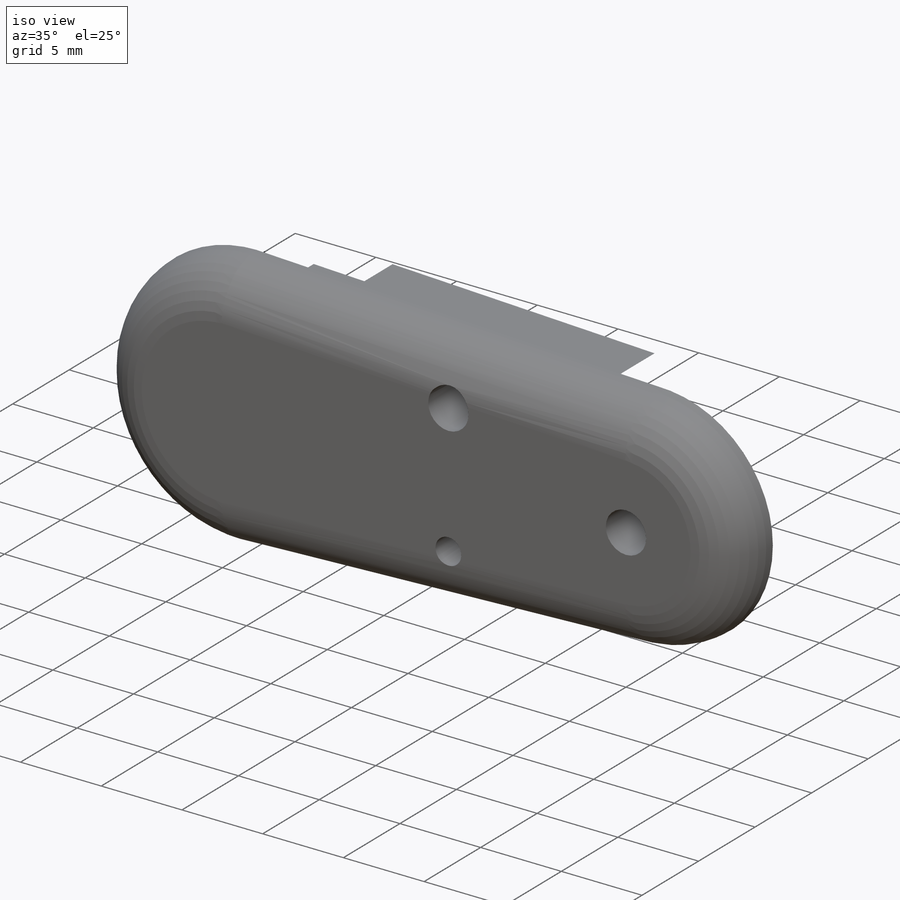
[diagram: iso view]
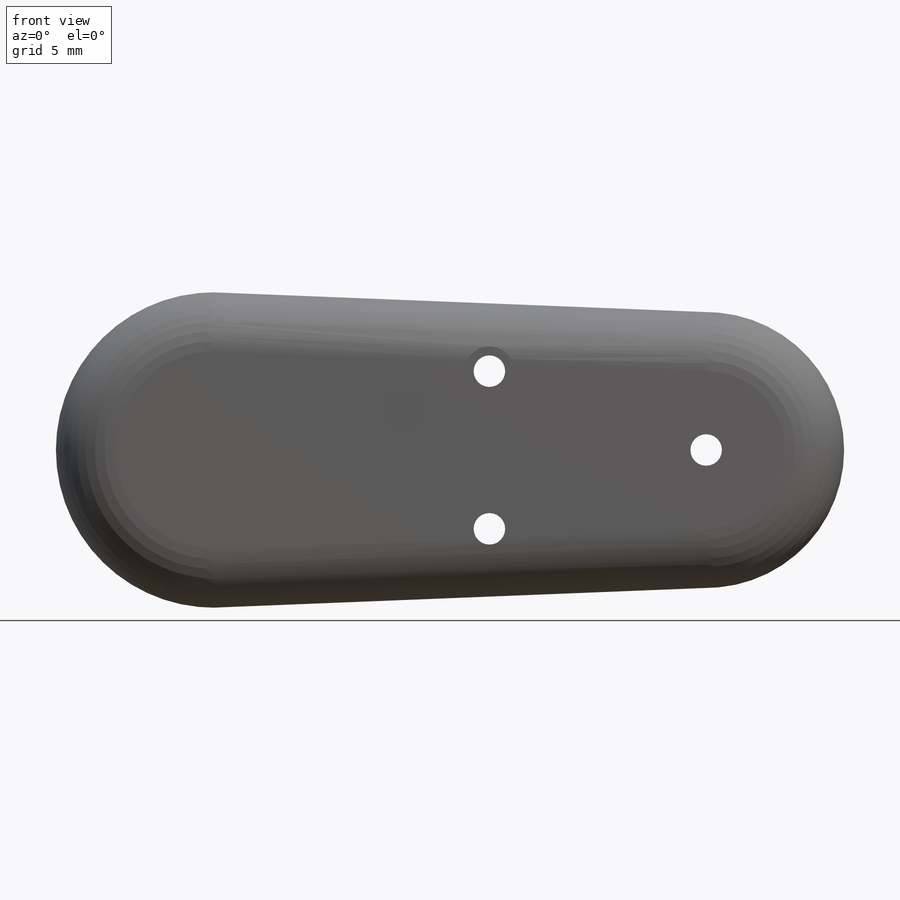
[diagram: front view]
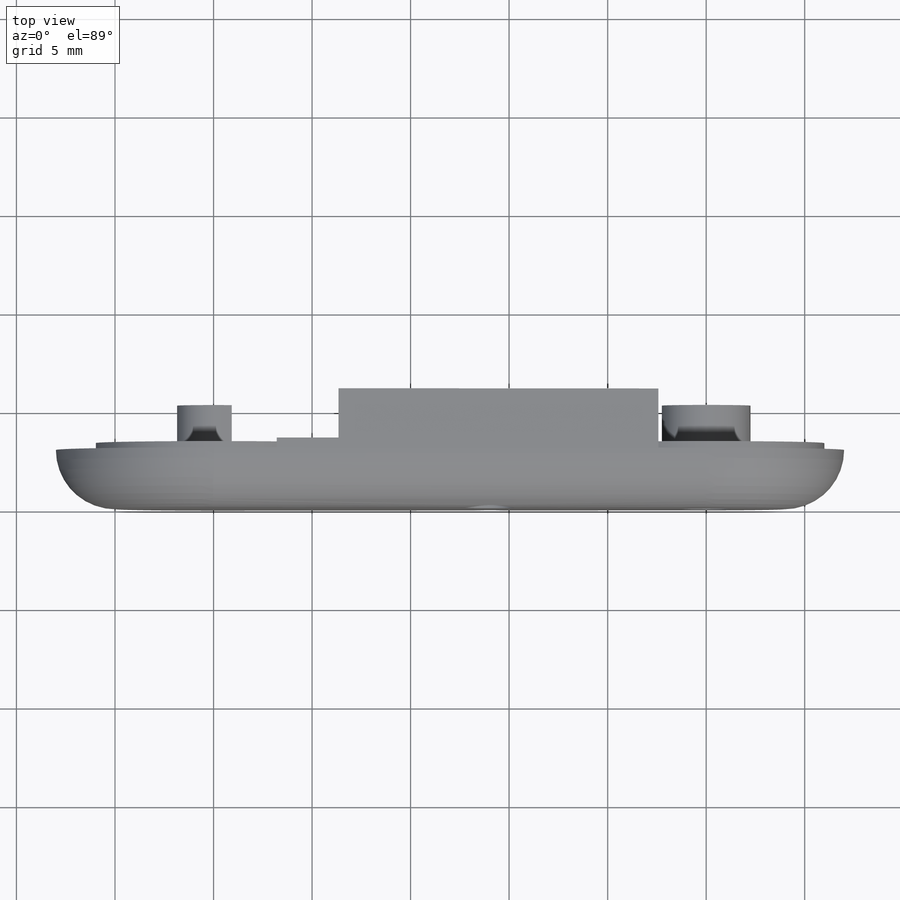
[diagram: top view]
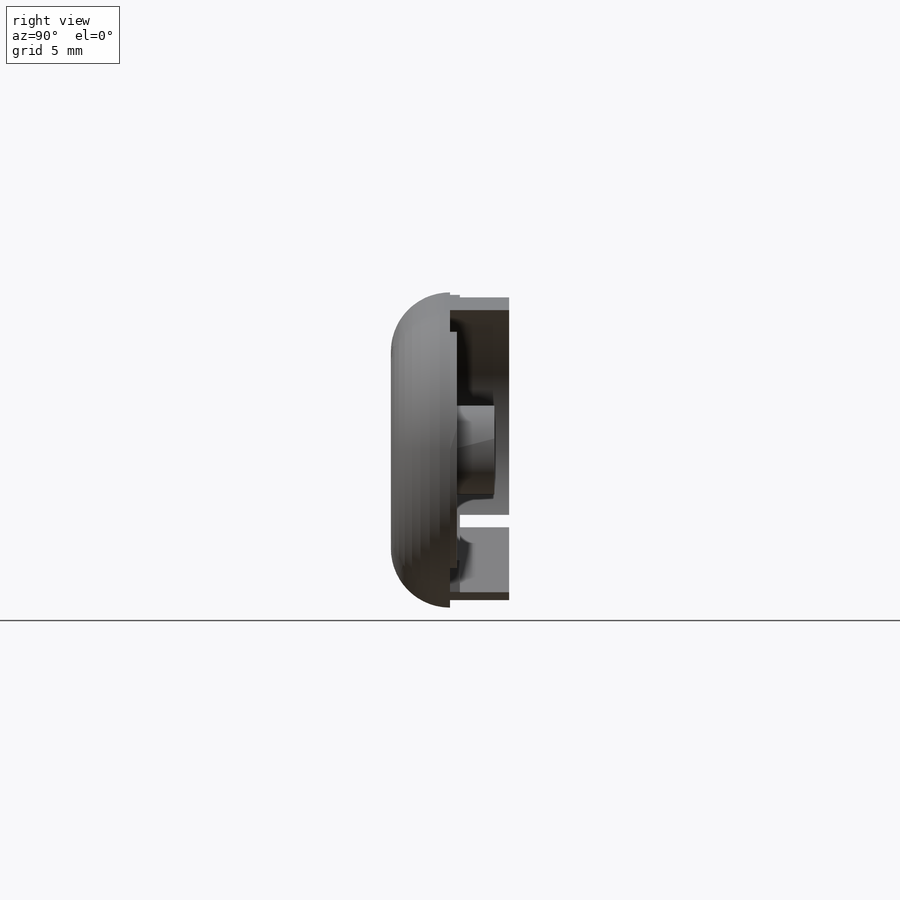
[diagram: right view]
SOLIDWORKS PART (.sldprt)
format: sldprt  version: not decoded by parser v0  size: 404,992 bytes
history: native  units: mm
features: sketch x9, cut_extrude x6, extrude x3, material x1, fillet x1 (+14 scaffold rows collapsed; 1 parser-record rows omitted)
feature tree (35):
  scaffold x14  (default folders/planes/origin — collapsed)
  material  "Material <not specified>"
  sketch  "Sketch1"  dims[D1=~7.36504mm]
  extrude  "Boss-Extrude1"  Depth=6mm
  sketch  "Sketch19"  dims[D1=~16.885186mm]
  cut_extrude  "Joint Holes"  Depth=3mm
  sketch  "Sketch3"  dims[D1=~0.589139mm]
  extrude  "Joint Inserts"  Depth=2.25mm
  sketch  "Sketch15"  dims[D1=~5.446535mm]
  cut_extrude  "Distal Flexion Canal"  Depth=2.5mm
  sketch  "Sketch18"  dims[c1.D1=~8.638435mm c2.D1=45.0deg c3.D1=~4.542863mm c4.D1=~42.479455deg c5.D1=~2.70337mm c6.D1=~42.479455deg c7.D1=~3.018251mm]
  cut_extrude  "Top Sleeve Insert"  Depth=0.5mm
  sketch  "Sketch17"  dims[D1=~5.397021mm]
  cut_extrude  "Bottom Sleeve Insert"  Depth=3mm
  sketch  "Sketch20"  dims[D1=2.5mm]
  extrude  "Friction"  Depth=0.35mm
  parser-record x1  (decoder bookkeeping rows leaked as tree rows — omitted from the tree; the rows remain in map.json)
  sketch  "Sketch10"  dims[D1=11.0mm]
  cut_extrude  "Screw Holes"  [1 undecoded]
  sketch  "Sketch21"  dims[D1=2.5mm]
  cut_extrude  "Screw Heads"  Depth=3mm
  fillet  "Fillet1"  Radius=3mm
decode coverage: 18 of 19 modeling features carry decoded parameters
note: ~ marks probable driven/reference dimensions
note: 1 parameter value undecoded
note: suppression state not decoded; provenance and decode notes live in map.json
